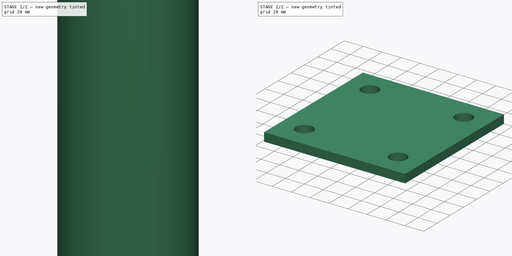
[diagram: build sequence overview — one tinted view per stage of 2, left to right]
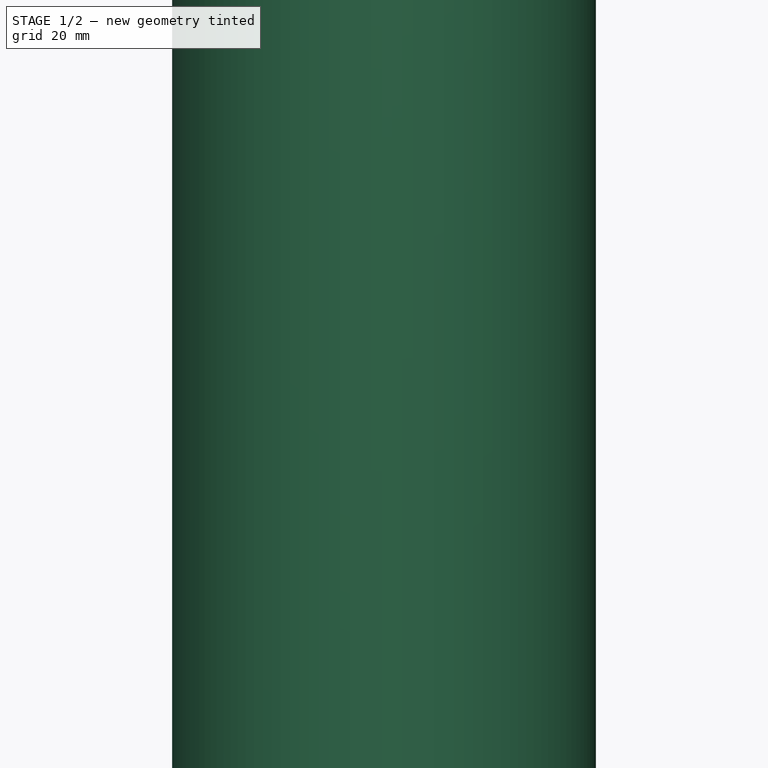
[diagram: stage 1 of 2 — iso view after this stage's code; geometry added in this stage tinted green]
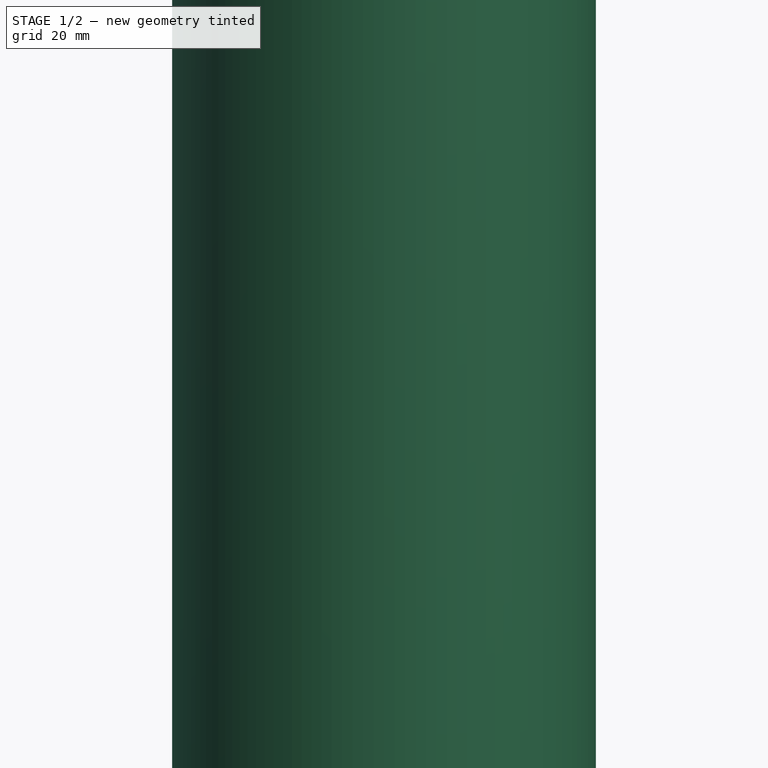
[diagram: stage 1 of 2 — front view after this stage's code; geometry added in this stage tinted green]
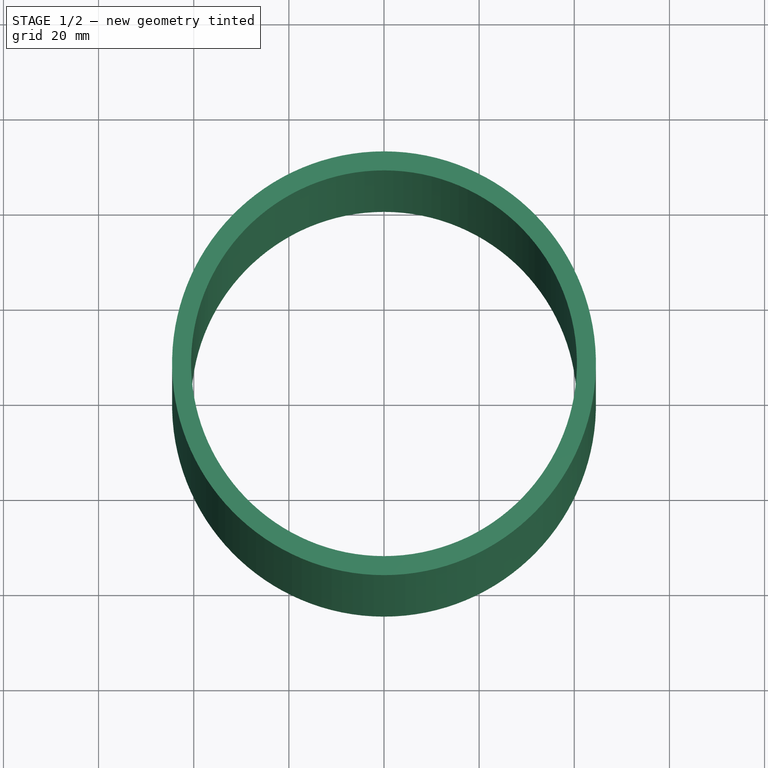
[diagram: stage 1 of 2 — top view after this stage's code; geometry added in this stage tinted green]
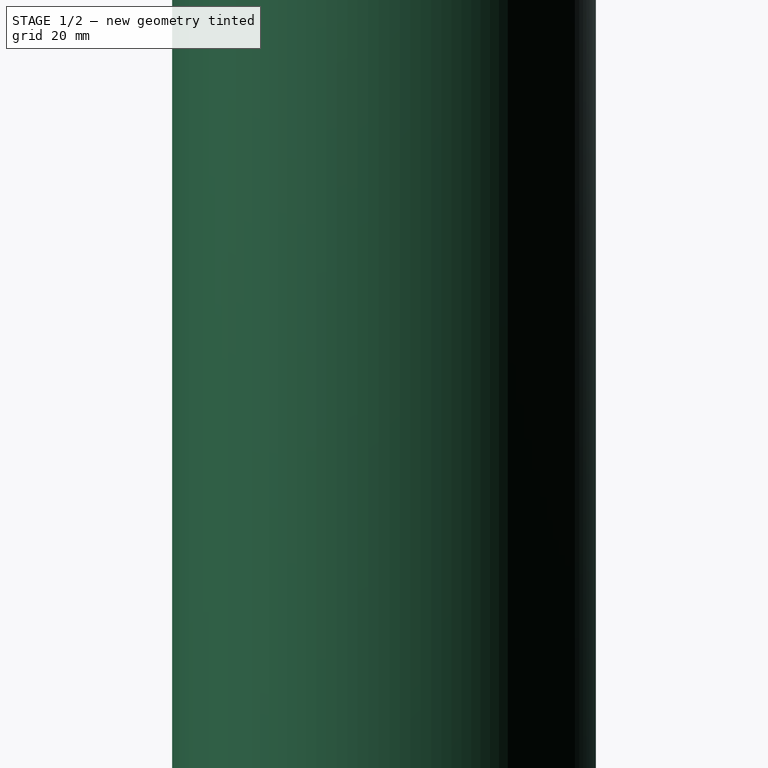
[diagram: stage 1 of 2 — right view after this stage's code; geometry added in this stage tinted green]
FCSTD DOCUMENT  (FreeCAD 1.0R39319 (Git))
Label: 03_Pst_Pipe
License: All rights reserved
objects: Sketcher::SketchObject×1, PartDesign::Pad×1, Part::FeaturePython×1, App::Part×1
note: 6 computed .brp shape members not serialized (recipe doc carries the construction recipe); baked Part::Feature solids carry a one-line shape summary decoded from their .brp

FEATURE [Part::FeaturePython] Pipe  # WARN: FeaturePython — macro-defined, semantics opaque (R4)
  D = 89.1
  JPN = 一般構造用炭素鋼鋼管
  L = 500
  Placement = pos=(0,0,0) rot=(1,0,0;1.5708rad)
  Solid = true
  Standard = Φ89.1x4.0  L=5500
  g0 = 7.85
  mass = 4.19739
  size = 17
  standard = STK
  t = 4
  type = 05_Pipe
FEATURE [App::Part] Part  label="Pst_Pipe"
  Group = -> [Pad,Pipe,Sketch]
  JPN = 支柱
  Origin = -> Origin001
  Standard = Φ89.1x4.0 , H=500
  count = 1
  g0 = 7.85
  mass = 5.69608
  material = SS41
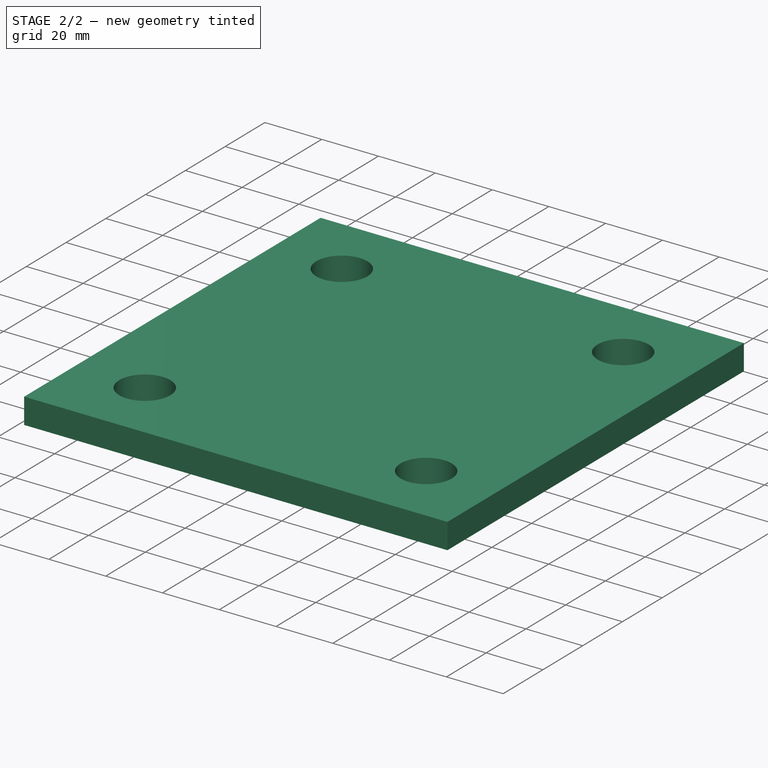
[diagram: stage 2 of 2 — iso view after this stage's code; geometry added in this stage tinted green]
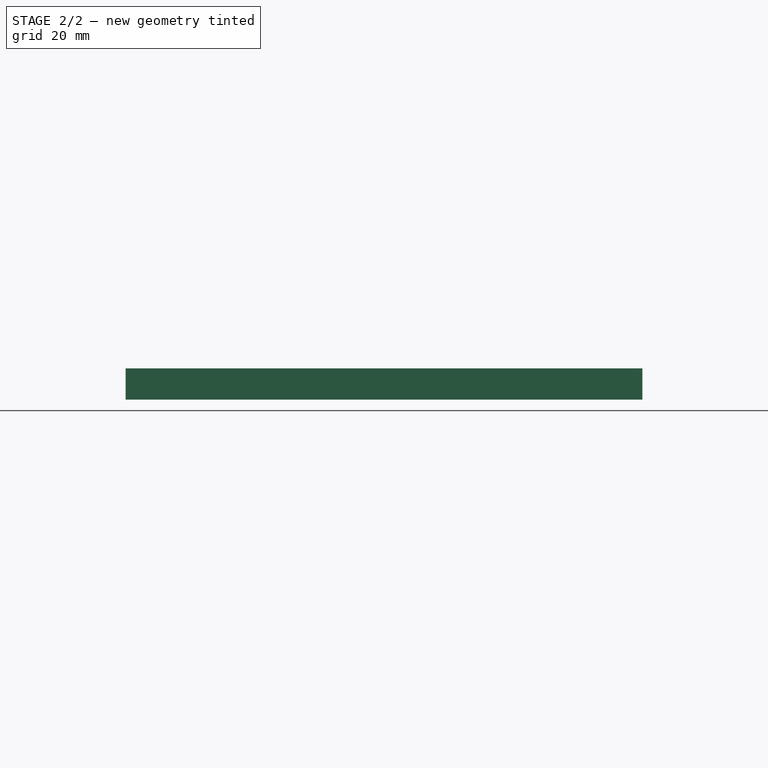
[diagram: stage 2 of 2 — front view after this stage's code; geometry added in this stage tinted green]
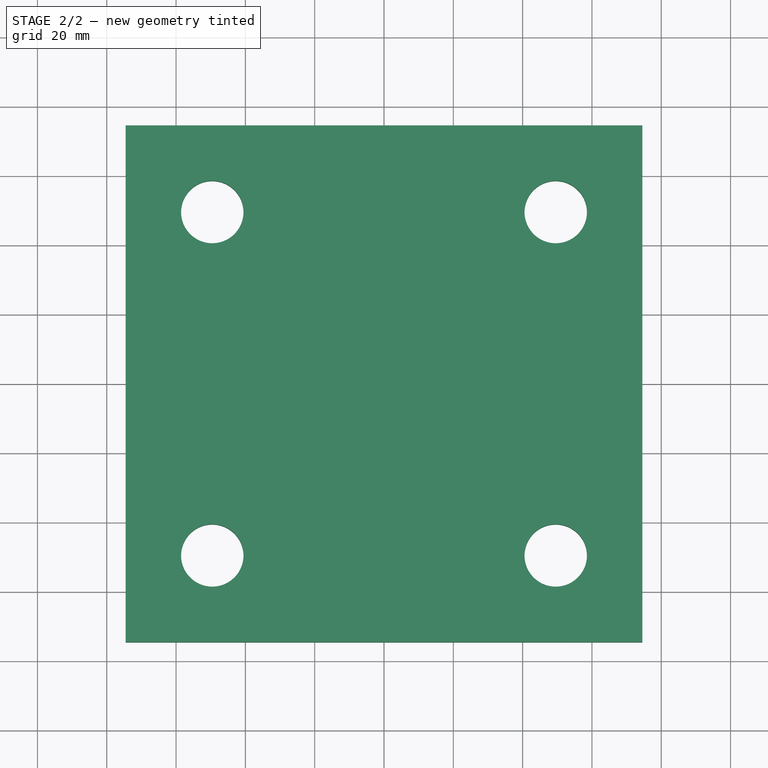
[diagram: stage 2 of 2 — top view after this stage's code; geometry added in this stage tinted green]
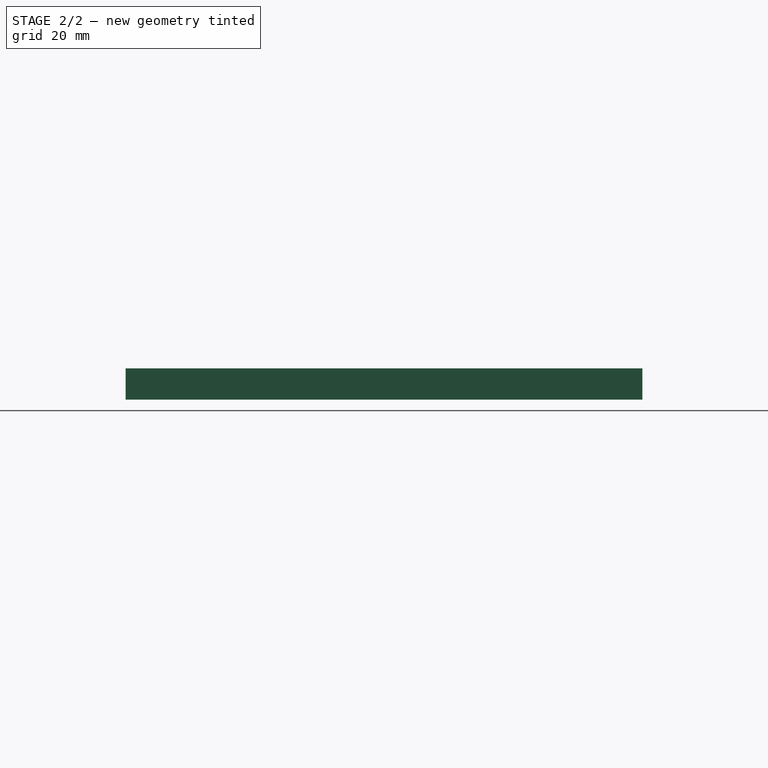
[diagram: stage 2 of 2 — right view after this stage's code; geometry added in this stage tinted green]
FEATURE [Sketcher::SketchObject] Sketch
  ArcFitTolerance = 1e-06
  FullyConstrained = true
  MakeInternals = false
  MapMode = 5
  Placement = pos=(0,0,0) rot=(1,0,0;3.14159rad)
  expr: Constraints[22] = Pipe.D + 60
  expr: Constraints[23] = Pipe.D + 60
  sketch-geometry (9):
    g0: LineSegment StartX=-74.55 StartY=-74.55 StartZ=0 EndX=74.55 EndY=-74.55 EndZ=0
    g1: LineSegment StartX=74.55 StartY=-74.55 StartZ=0 EndX=74.55 EndY=74.55 EndZ=0
    g2: LineSegment StartX=74.55 StartY=74.55 StartZ=0 EndX=-74.55 EndY=74.55 EndZ=0
    g3: LineSegment StartX=-74.55 StartY=74.55 StartZ=0 EndX=-74.55 EndY=-74.55 EndZ=0
    g4: GeomPoint [constr] X=0 Y=7e-16 Z=0
    g5: Circle CenterX=-49.55 CenterY=49.55 CenterZ=0 NormalX=0 NormalY=0 NormalZ=1 AngleXU=0 Radius=9
    g6: Circle CenterX=-49.55 CenterY=-49.55 CenterZ=0 NormalX=0 NormalY=0 NormalZ=1 AngleXU=0 Radius=9
    g7: Circle CenterX=49.55 CenterY=-49.55 CenterZ=0 NormalX=0 NormalY=0 NormalZ=1 AngleXU=0 Radius=9
    g8: Circle CenterX=49.55 CenterY=49.55 CenterZ=0 NormalX=0 NormalY=0 NormalZ=1 AngleXU=0 Radius=9
  constraints (24):
    c: Coincident(g0,g1)
    c: Coincident(g1,g2)
    c: Coincident(g2,g3)
    c: Coincident(g3,g0)
    c: Horizontal(g0)
    c: Horizontal(g2)
    c: Vertical(g1)
    c: Vertical(g3)
    c: Symmetric(g2,g0,g4)
    c: Coincident(g4,g-1)
    c: Diameter(g5) = 18
    c: Equal(g5,g6)
    c: Equal(g6,g7)
    c: Equal(g7,g8)
    c: Vertical(g5,g6)
    c: Vertical(g8,g7)
    c: Horizontal(g5,g8)
    c: Horizontal(g6,g7)
    c: DistanceY(g5,g2) = 25
    c: DistanceX(g2,g5) = 25
    c: DistanceX(g8,g1) = 25
    c: DistanceY(g0,g7) = 25
    c: DistanceX(g2,g2) = 149.1
    c: DistanceY(g3,g3) = 149.1
FEATURE [PartDesign::Pad] Pad  label="plt"
  Direction = (0,-1e-16,-1)
  Length = 9
  Length2 = 10
  Placement = pos=(0,0,0) rot=(1,0,0;3.14159rad)
  Profile = -> Sketch
  ReferenceAxis = -> Sketch [N_Axis]
  Refine = true
  Suppressed = false
  Type = 0
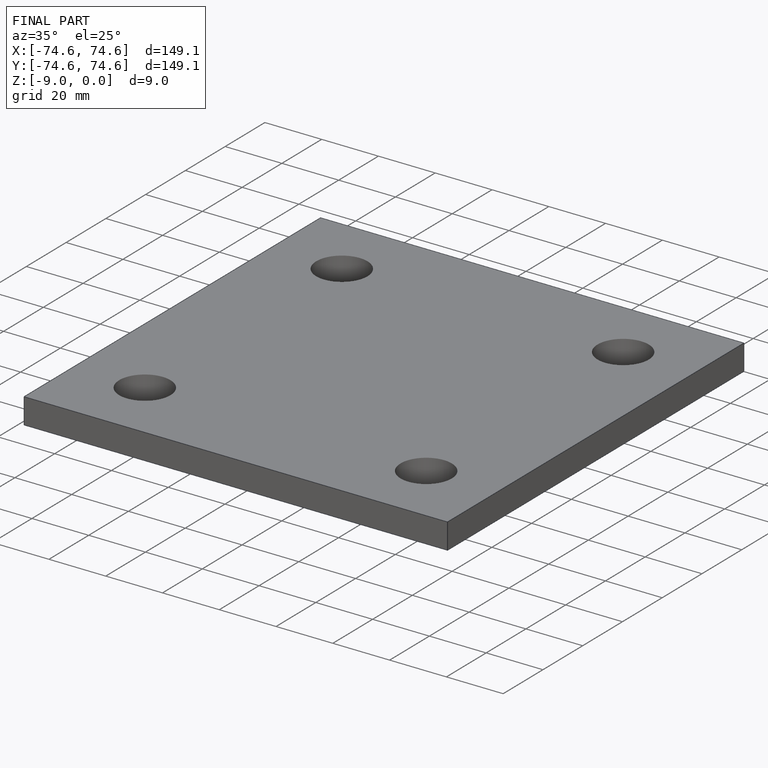
[diagram: finished part — iso view with bounding-box wireframe]
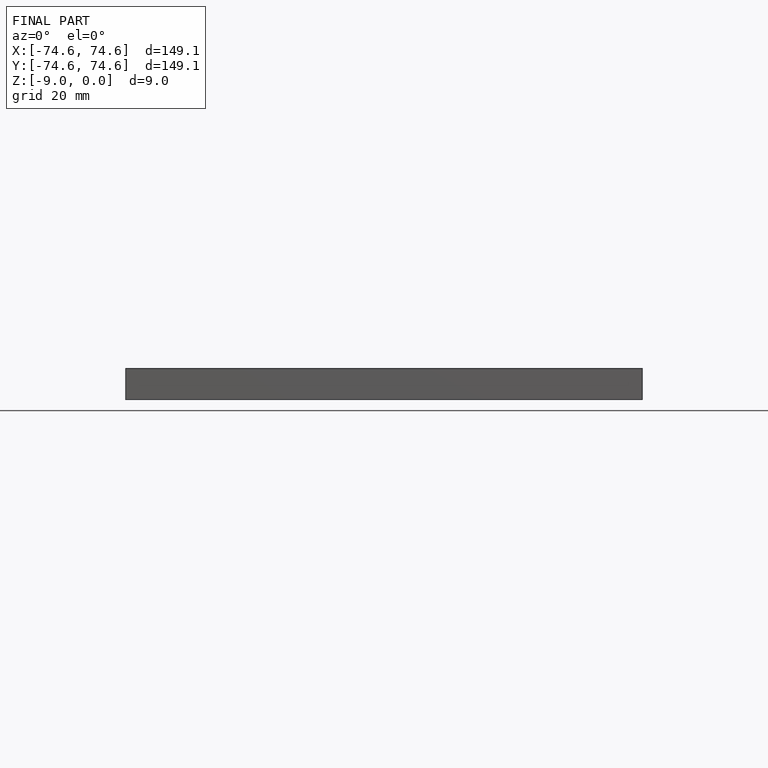
[diagram: finished part — front view with bounding-box wireframe]
